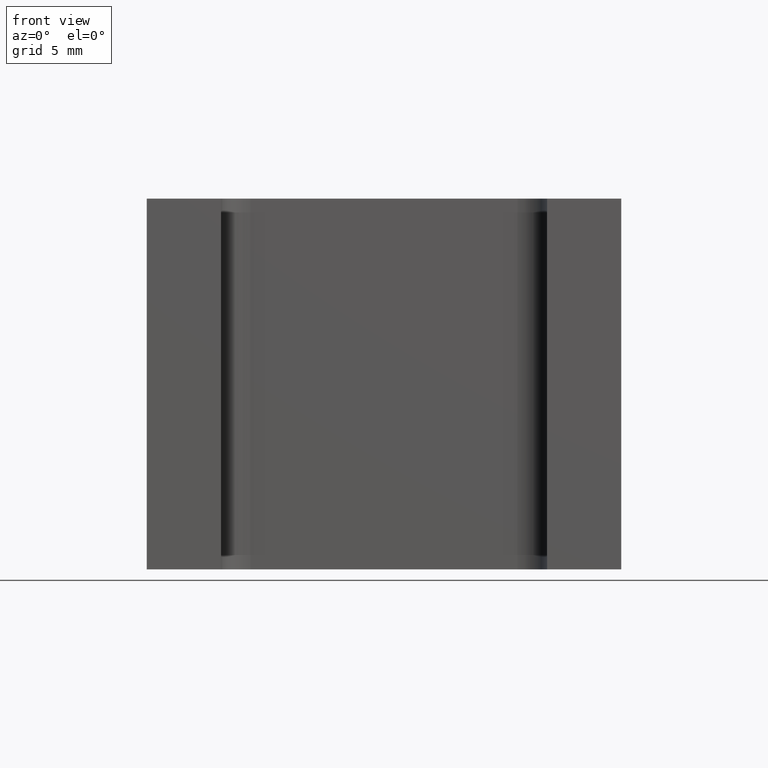
[diagram: clean part render]
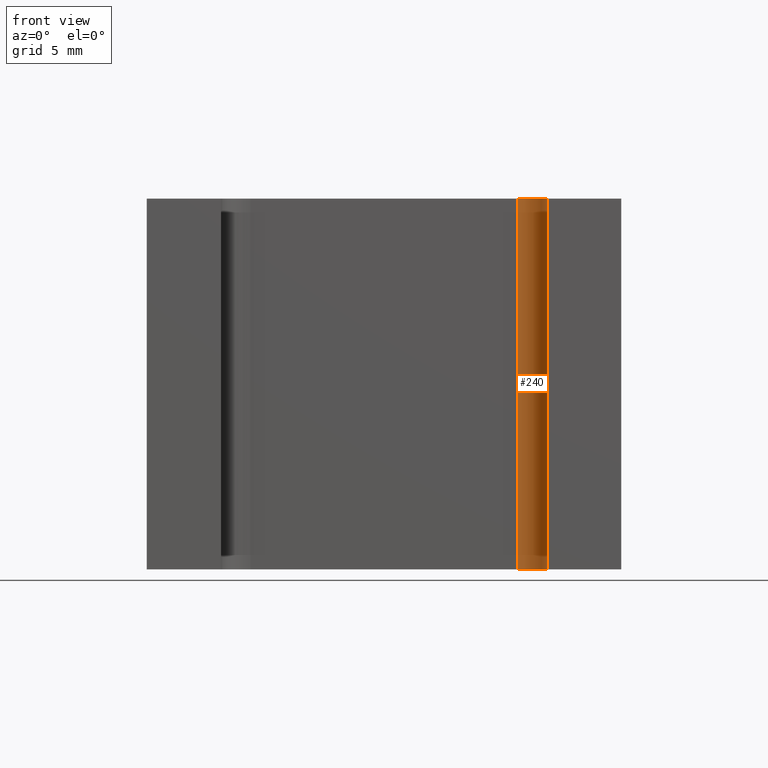
[diagram: same view with one face highlighted and labeled with its STEP entity id]
A machine part, front view. The second image highlights one B-rep face of the part: STEP entity #240.
In plain terms, the highlighted cylindrical surface (edge-blend (fillet) strip) has radius 2 mm, axis along (0, 0, 1).
Its self-contained STEP definition (entity closure, byte-faithful):
#16=CYLINDRICAL_SURFACE('',#278,2.);
#20=FACE_OUTER_BOUND('',#33,.T.);
#33=EDGE_LOOP('',(#176,#177,#178,#179));
#44=CIRCLE('',#275,2.);
#46=CIRCLE('',#279,2.);
#58=LINE('',#384,#87);
#60=LINE('',#389,#89);
#87=VECTOR('',#311,10.);
#89=VECTOR('',#317,10.);
#109=VERTEX_POINT('',#363);
#110=VERTEX_POINT('',#365);
#118=VERTEX_POINT('',#382);
#119=VERTEX_POINT('',#387);
#131=EDGE_CURVE('',#110,#109,#44,.T.);
#140=EDGE_CURVE('',#118,#109,#58,.T.);
#142=EDGE_CURVE('',#118,#119,#46,.T.);
#143=EDGE_CURVE('',#119,#110,#60,.T.);
#176=ORIENTED_EDGE('',*,*,#142,.T.);
#177=ORIENTED_EDGE('',*,*,#143,.T.);
#178=ORIENTED_EDGE('',*,*,#131,.T.);
#179=ORIENTED_EDGE('',*,*,#140,.F.);
#240=ADVANCED_FACE('',(#20),#16,.F.);
#275=AXIS2_PLACEMENT_3D('',#366,#298,#299);
#278=AXIS2_PLACEMENT_3D('',#386,#313,#314);
#279=AXIS2_PLACEMENT_3D('',#388,#315,#316);
#298=DIRECTION('center_axis',(0.,0.,-1.));
#299=DIRECTION('ref_axis',(1.,0.,0.));
#311=DIRECTION('',(0.,0.,-1.));
#313=DIRECTION('center_axis',(0.,0.,1.));
#314=DIRECTION('ref_axis',(1.,0.,0.));
#315=DIRECTION('center_axis',(0.,0.,1.));
#316=DIRECTION('ref_axis',(1.,0.,0.));
#317=DIRECTION('',(0.,0.,-1.));
#363=CARTESIAN_POINT('',(11.,-11.,-12.5));
#365=CARTESIAN_POINT('',(9.,-9.,-12.5));
#366=CARTESIAN_POINT('Origin',(9.,-11.,-12.5));
#382=CARTESIAN_POINT('',(11.,-11.,12.5));
#384=CARTESIAN_POINT('',(11.,-11.,0.));
#386=CARTESIAN_POINT('Origin',(9.,-11.,0.));
#387=CARTESIAN_POINT('',(9.,-9.,12.5));
#388=CARTESIAN_POINT('Origin',(9.,-11.,12.5));
#389=CARTESIAN_POINT('',(9.,-9.,0.));